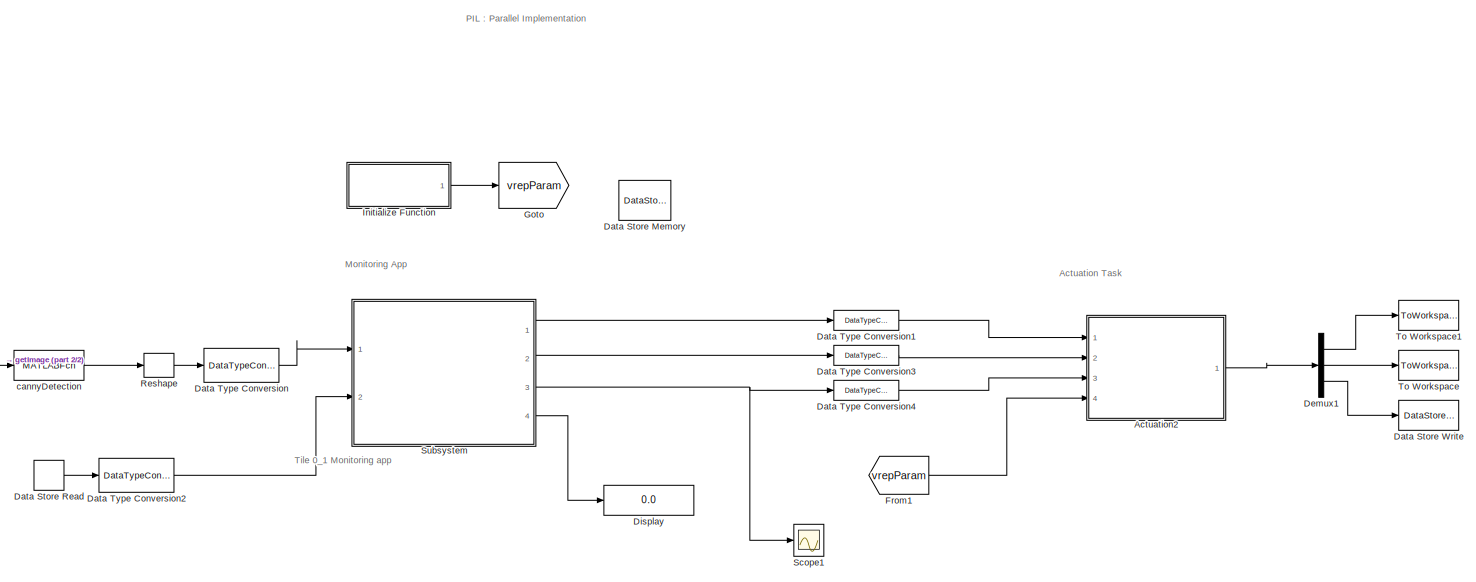
[diagram: root canvas - part 1/2, most of the canvas]
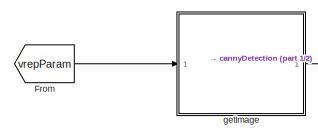
[diagram: root canvas - part 2/2, middle left region]
MODEL slx_35c3db443557
KIND model
CONFIG AbsTol = auto
CONFIG EnableMultiTasking = off
CONFIG FixedStep = 1
CONFIG MaxStep = auto
CONFIG MinStep = auto
CONFIG RelTol = 1e-3
CONFIG SampleTimeConstraint = Unconstrained
CONFIG Solver = FixedStepAuto
CONFIG SolverName = FixedStepAuto
CONFIG StartTime = 0
CONFIG StopTime = 0
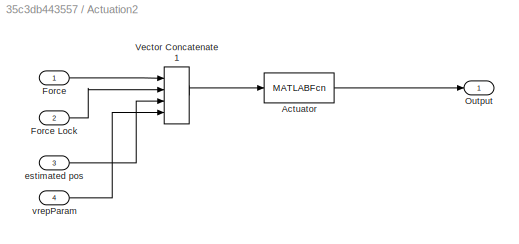
BLOCK [SubSystem] Actuation2
  Ports = [4, 1]
  RequestExecContextInheritance = off
BLOCK [MATLABFcn] Actuation2/Actuator 
  MATLABFcn = vrepUpdateActuator
  Output1D = off
  OutputDimensions = [1,3]
  Ports = [1, 1]
BLOCK [Inport] Actuation2/Force
  IconDisplay = Port number
BLOCK [Inport] Actuation2/Force Lock
  IconDisplay = Port number
  Port = 2
BLOCK [Outport] Actuation2/Output
  IconDisplay = Port number
BLOCK [Concatenate] Actuation2/Vector Concatenate1
  NumInputs = 4
  Ports = [4, 1]
BLOCK [Inport] Actuation2/estimated pos 
  IconDisplay = Port number
  Port = 3
BLOCK [Inport] Actuation2/vrepParam
  IconDisplay = Port number
  Port = 4
BLOCK [DataStoreMemory] Data Store Memory
  DataStoreName = counter
  ReadBeforeWriteMsg = warning
  ShowAdditionalParam = off
  WriteAfterReadMsg = warning
  WriteAfterWriteMsg = warning
BLOCK [DataStoreRead] Data Store Read
  DataStoreName = counter
  Ports = [0, 1]
BLOCK [DataStoreWrite] Data Store Write
  DataStoreName = counter
  Ports = [1]
  SampleTime = sim_step
BLOCK [DataTypeConversion] Data Type Conversion
  OutDataTypeStr = uint8
  RndMeth = Floor
  SaturateOnIntegerOverflow = off
BLOCK [DataTypeConversion] Data Type Conversion1
  OutDataTypeStr = double
  RndMeth = Floor
  SaturateOnIntegerOverflow = off
BLOCK [DataTypeConversion] Data Type Conversion2
  OutDataTypeStr = uint32
  RndMeth = Floor
  SaturateOnIntegerOverflow = off
BLOCK [DataTypeConversion] Data Type Conversion3
  OutDataTypeStr = double
  RndMeth = Floor
  SaturateOnIntegerOverflow = off
BLOCK [DataTypeConversion] Data Type Conversion4
  OutDataTypeStr = double
  RndMeth = Floor
  SaturateOnIntegerOverflow = off
BLOCK [Demux] Demux1
  DisplayOption = bar
  Outputs = 3
  Ports = [1, 3]
BLOCK [Display] Display
  Decimation = 1
  Format = hex (Stored Integer)
  Ports = [1]
BLOCK [From] From
  GotoTag = vrepParam
BLOCK [From] From1
  GotoTag = vrepParam
BLOCK [Goto] Goto
  GotoTag = vrepParam
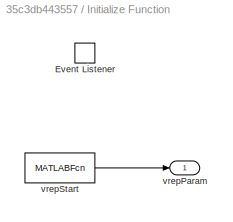
BLOCK [SubSystem] Initialize Function
  Ports = [0, 1]
  RequestExecContextInheritance = off
  TreatAsAtomicUnit = on
BLOCK [EventListener] Initialize Function/Event Listener
  DisableCoverage = on
  EventName = reset
BLOCK [Outport] Initialize Function/vrepParam 
  IconDisplay = Port number
BLOCK [MATLABFcn] Initialize Function/vrepStart 
  MATLABFcn = vrepStart
  Ports = [1, 1]
BLOCK [Reshape] Reshape
  Ports = [1, 1]
BLOCK [Scope] Scope1
  Floating = off
  NumInputPorts = 1
  Ports = [1]
  ScopeSpecificationString = Simulink.scopes.TimeScopeBlockCfg('CurrentConfiguration', extmgr.ConfigurationSet(extmgr.Configuration('Core','General UI',true),extmgr.Configuration('Core','Source UI',true),extmgr.Configuration('Sources','WiredSimulink',true,'DataLoggingVariableName','ScopeData1'),extmgr.Configuration('Visuals','Time Domain',true,'SerializedDisplays',{struct('MinYLimReal','-8.375','MaxYLimReal','75.375','YLabelR...<+1484ch>
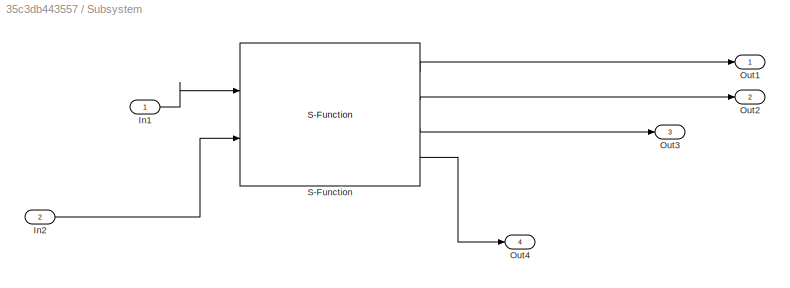
BLOCK [SubSystem] Subsystem
  Ports = [2, 4]
  RequestExecContextInheritance = off
BLOCK [Inport] Subsystem/In1
  IconDisplay = Port number
BLOCK [Inport] Subsystem/In2
  IconDisplay = Port number
  Port = 2
BLOCK [Outport] Subsystem/Out1
  IconDisplay = Port number
BLOCK [Outport] Subsystem/Out2
  IconDisplay = Port number
  Port = 2
BLOCK [Outport] Subsystem/Out3
  IconDisplay = Port number
  Port = 3
BLOCK [Outport] Subsystem/Out4
  IconDisplay = Port number
  Port = 4
BLOCK [S-Function] Subsystem/S-Function
  EnableBusSupport = off
  FunctionName = monitor_app_block
  Ports = [2, 4]
  SFcnIsStateOwnerBlock = off
  SFunctionDeploymentMode = off
BLOCK [ToWorkspace] To Workspace
  MaxDataPoints = inf
  Ports = [1]
  SampleTime = -1
  Save2DSignal = 2-D array (concatenate along first dimension)
  VariableName = time
BLOCK [ToWorkspace] To Workspace1
  MaxDataPoints = inf
  Ports = [1]
  SampleTime = -1
  Save2DSignal = 2-D array (concatenate along first dimension)
  VariableName = real_pos
BLOCK [MATLABFcn] cannyDetection 
  MATLABFcn = cannyDetection
  Output1D = off
  Ports = [1, 1]
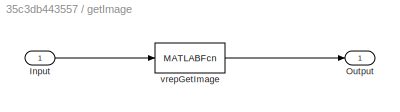
BLOCK [SubSystem] getImage
  Ports = [1, 1]
  RequestExecContextInheritance = off
BLOCK [Inport] getImage/Input
  IconDisplay = Port number
BLOCK [Outport] getImage/Output
  IconDisplay = Port number
BLOCK [MATLABFcn] getImage/vrepGetImage
  MATLABFcn = vrepGetImage
  Output1D = off
  OutputDimensions = [142,88]
  Ports = [1, 1]
ANNOTATION (root): Actuation Task
ANNOTATION (root): Monitoring App
ANNOTATION (root): Tile 0_1 Monitoring app
ANNOTATION (root): PIL : Parallel Implementation
LINE Actuation2/Actuator :1 -> Actuation2/Output:1
LINE Actuation2/Force Lock:1 -> Actuation2/Vector Concatenate1:2
LINE Actuation2/Force:1 -> Actuation2/Vector Concatenate1:1
LINE Actuation2/Vector Concatenate1:1 -> Actuation2/Actuator :1
LINE Actuation2/estimated pos :1 -> Actuation2/Vector Concatenate1:3
LINE Actuation2/vrepParam:1 -> Actuation2/Vector Concatenate1:4
LINE Actuation2:1 -> Demux1:1
LINE Data Store Read:1 -> Data Type Conversion2:1
LINE Data Type Conversion1:1 -> Actuation2:1
LINE Data Type Conversion2:1 -> Subsystem:2
LINE Data Type Conversion3:1 -> Actuation2:2
LINE Data Type Conversion4:1 -> Actuation2:3
LINE Data Type Conversion:1 -> Subsystem:1
LINE Demux1:1 -> To Workspace1:1
LINE Demux1:2 -> To Workspace:1
LINE Demux1:3 -> Data Store Write:1
LINE From1:1 -> Actuation2:4
LINE From:1 -> getImage:1
LINE Initialize Function/vrepStart :1 -> Initialize Function/vrepParam :1
LINE Initialize Function:1 -> Goto:1
LINE Reshape:1 -> Data Type Conversion:1
LINE Subsystem/In1:1 -> Subsystem/S-Function:1
LINE Subsystem/In2:1 -> Subsystem/S-Function:2
LINE Subsystem/S-Function:1 -> Subsystem/Out1:1
LINE Subsystem/S-Function:2 -> Subsystem/Out2:1
LINE Subsystem/S-Function:3 -> Subsystem/Out3:1
LINE Subsystem/S-Function:4 -> Subsystem/Out4:1
LINE Subsystem:1 -> Data Type Conversion1:1
LINE Subsystem:2 -> Data Type Conversion3:1
NET Subsystem:3 -> Data Type Conversion4:1, Scope1:1
LINE Subsystem:4 -> Display:1
LINE cannyDetection :1 -> Reshape:1
LINE getImage/Input:1 -> getImage/vrepGetImage:1
LINE getImage/vrepGetImage:1 -> getImage/Output:1
LINE getImage:1 -> cannyDetection :1
note: NET lines group one-source signal fan-out (src -> all destinations, sorted); 1:1 wires keep LINE
